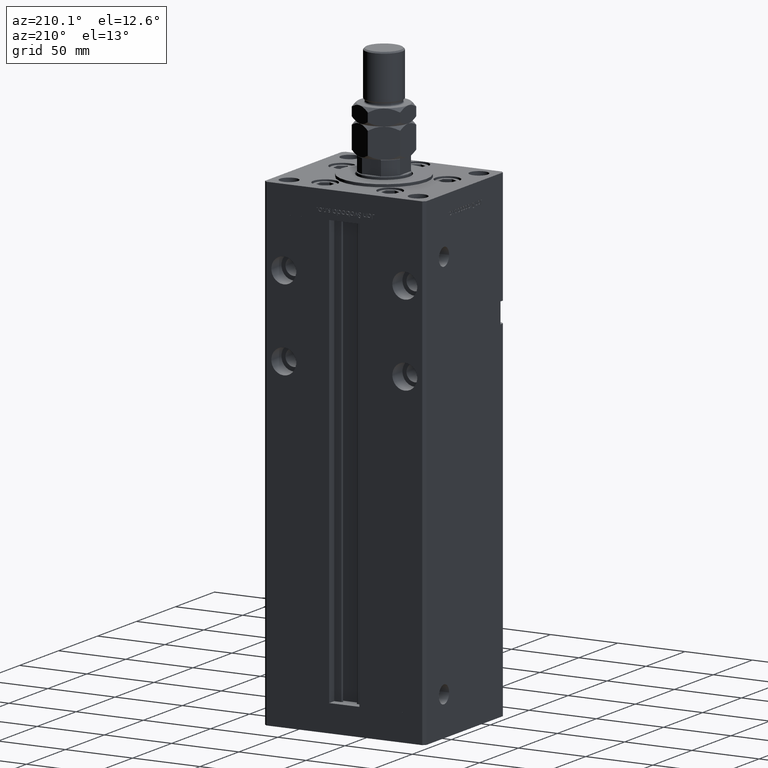
[diagram: clean part render]
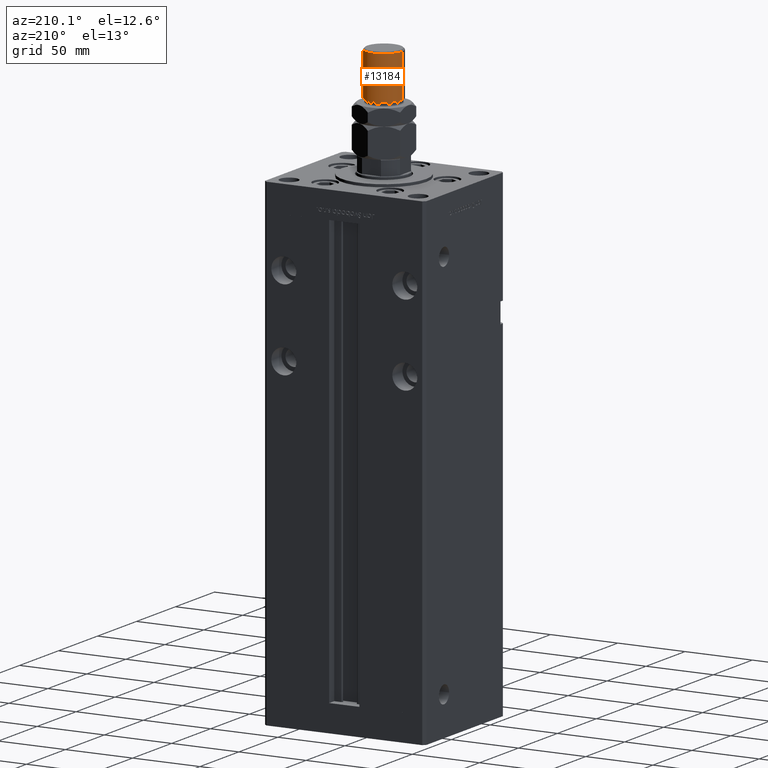
[diagram: same view with one face highlighted and labeled with its STEP entity id]
A machine part, auxiliary view. The second image highlights one B-rep face of the part: STEP entity #13184.
In plain terms, the highlighted cylindrical surface (edge-blend (fillet) strip) has radius 13.5 mm, axis along (-0, -0, -1).
Its self-contained STEP definition (entity closure, byte-faithful):
#3593 = AXIS2_PLACEMENT_3D ( 'NONE', #21105, #46544, #49891 ) ;
#5863 = CIRCLE ( 'NONE', #31485, 13.50000000000000000 ) ;
#7056 = VECTOR ( 'NONE', #42921, 1000.000000000000000 ) ;
#7471 = LINE ( 'NONE', #41231, #20502 ) ;
#9097 = CARTESIAN_POINT ( 'NONE',  ( 0.000000000000000000, 0.000000000000000000, 68.99999999999998579 ) ) ;
#9182 = CARTESIAN_POINT ( 'NONE',  ( 13.50000000000000000, 1.653273178848926867E-15, 70.00000000000000000 ) ) ;
#10074 = VERTEX_POINT ( 'NONE', #38255 ) ;
#12004 = CYLINDRICAL_SURFACE ( 'NONE', #22593, 13.50000000000000000 ) ;
#13184 = ADVANCED_FACE ( 'NONE', ( #28906 ), #12004, .T. ) ;
#13210 = ORIENTED_EDGE ( 'NONE', *, *, #29980, .T. ) ;
#14049 = DIRECTION ( 'NONE',  ( 1.000000000000000000, 0.000000000000000000, 0.000000000000000000 ) ) ;
#16045 = EDGE_CURVE ( 'NONE', #21695, #51050, #5863, .T. ) ;
#16190 = DIRECTION ( 'NONE',  ( -1.000000000000000000, 0.000000000000000000, 0.000000000000000000 ) ) ;
#17791 = EDGE_LOOP ( 'NONE', ( #35182, #13210, #52573, #24101 ) ) ;
#20502 = VECTOR ( 'NONE', #37076, 1000.000000000000000 ) ;
#21105 = CARTESIAN_POINT ( 'NONE',  ( 0.000000000000000000, 0.000000000000000000, 37.00000000000000000 ) ) ;
#21695 = VERTEX_POINT ( 'NONE', #26630 ) ;
#22593 = AXIS2_PLACEMENT_3D ( 'NONE', #41901, #49925, #16190 ) ;
#24101 = ORIENTED_EDGE ( 'NONE', *, *, #34505, .F. ) ;
#26630 = CARTESIAN_POINT ( 'NONE',  ( -13.50000000000000000, 0.000000000000000000, 68.99999999999998579 ) ) ;
#28906 = FACE_OUTER_BOUND ( 'NONE', #17791, .T. ) ;
#29779 = CARTESIAN_POINT ( 'NONE',  ( 13.50000000000000000, 1.653273178848926867E-15, 37.00000000000000000 ) ) ;
#29980 = EDGE_CURVE ( 'NONE', #51050, #43101, #47340, .T. ) ;
#30640 = EDGE_CURVE ( 'NONE', #43101, #10074, #32765, .T. ) ;
#31485 = AXIS2_PLACEMENT_3D ( 'NONE', #9097, #34823, #14049 ) ;
#32765 = CIRCLE ( 'NONE', #3593, 13.50000000000000000 ) ;
#34505 = EDGE_CURVE ( 'NONE', #21695, #10074, #7471, .T. ) ;
#34823 = DIRECTION ( 'NONE',  ( 0.000000000000000000, 0.000000000000000000, -1.000000000000000000 ) ) ;
#35182 = ORIENTED_EDGE ( 'NONE', *, *, #16045, .T. ) ;
#37076 = DIRECTION ( 'NONE',  ( -0.000000000000000000, -0.000000000000000000, -1.000000000000000000 ) ) ;
#38255 = CARTESIAN_POINT ( 'NONE',  ( -13.50000000000000000, 0.000000000000000000, 37.00000000000000000 ) ) ;
#39458 = CARTESIAN_POINT ( 'NONE',  ( 13.50000000000000000, 1.653273178848926867E-15, 68.99999999999998579 ) ) ;
#41231 = CARTESIAN_POINT ( 'NONE',  ( -13.50000000000000000, 0.000000000000000000, 70.00000000000000000 ) ) ;
#41901 = CARTESIAN_POINT ( 'NONE',  ( 0.000000000000000000, 0.000000000000000000, 70.00000000000000000 ) ) ;
#42921 = DIRECTION ( 'NONE',  ( -0.000000000000000000, -0.000000000000000000, -1.000000000000000000 ) ) ;
#43101 = VERTEX_POINT ( 'NONE', #29779 ) ;
#46544 = DIRECTION ( 'NONE',  ( -0.000000000000000000, -0.000000000000000000, 1.000000000000000000 ) ) ;
#47340 = LINE ( 'NONE', #9182, #7056 ) ;
#49891 = DIRECTION ( 'NONE',  ( 1.000000000000000000, 0.000000000000000000, 0.000000000000000000 ) ) ;
#49925 = DIRECTION ( 'NONE',  ( -0.000000000000000000, -0.000000000000000000, -1.000000000000000000 ) ) ;
#51050 = VERTEX_POINT ( 'NONE', #39458 ) ;
#52573 = ORIENTED_EDGE ( 'NONE', *, *, #30640, .T. ) ;